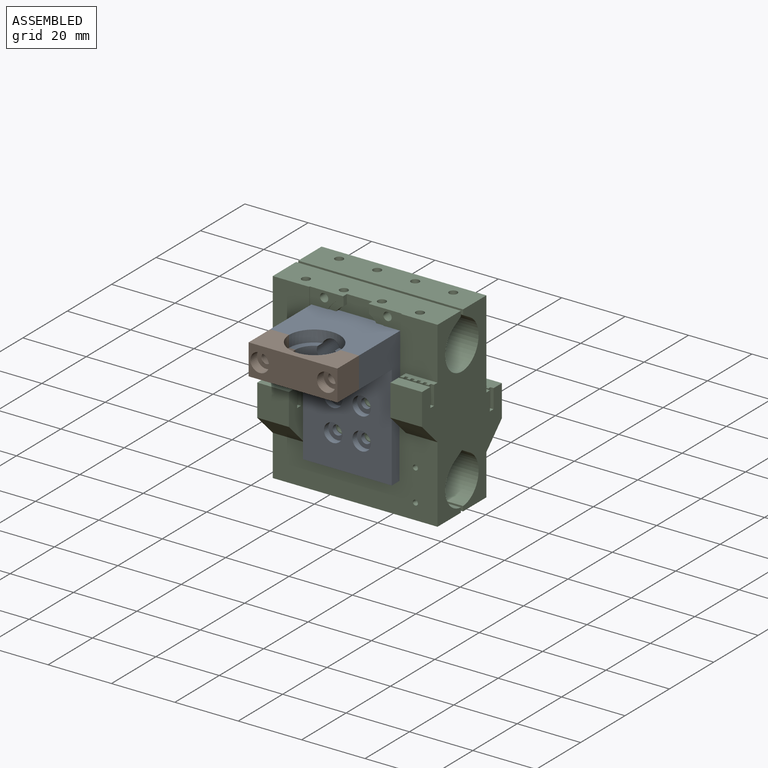
[diagram: assembled view]
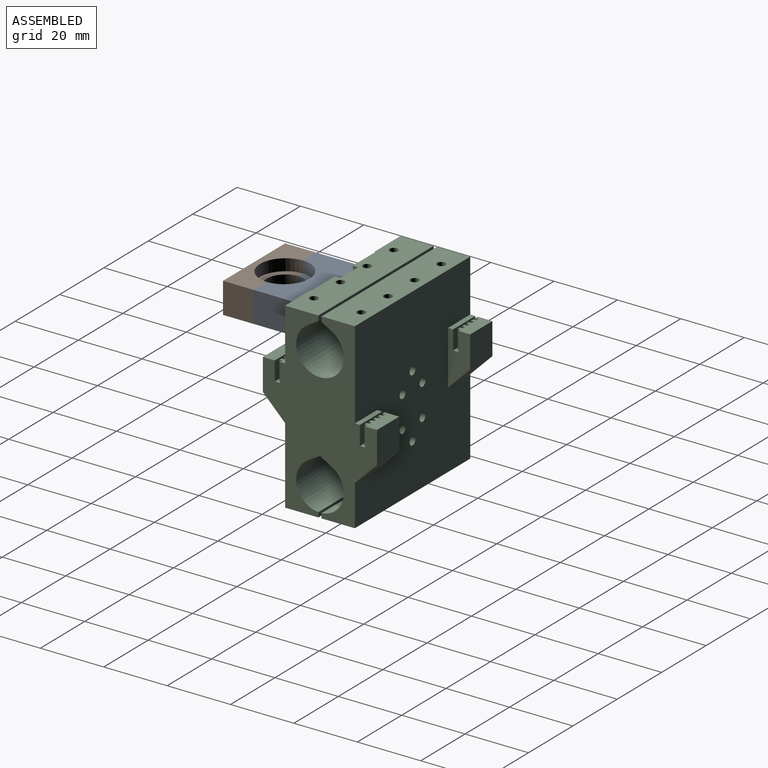
[diagram: assembled view, second angle]
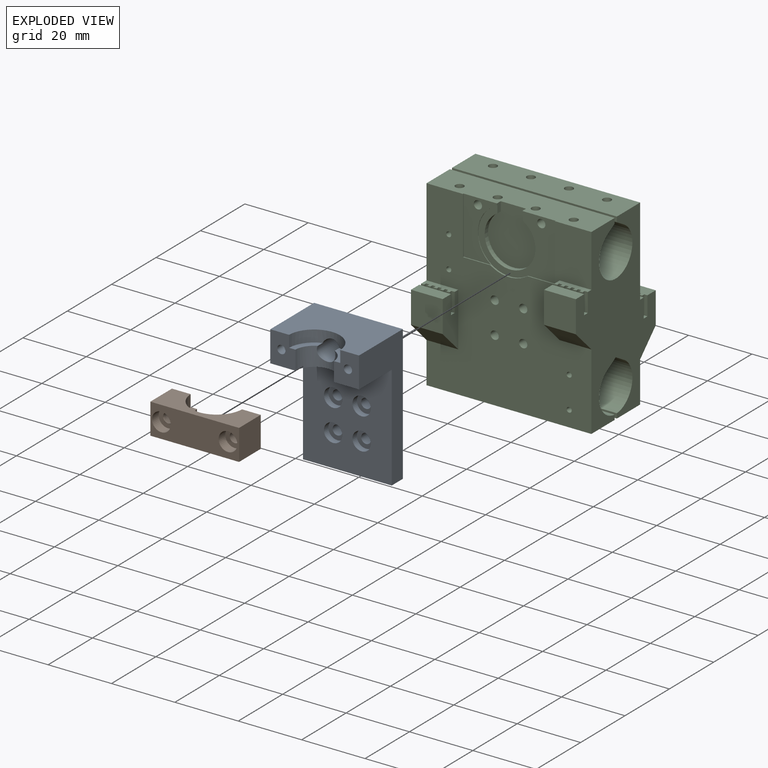
[diagram: exploded view]
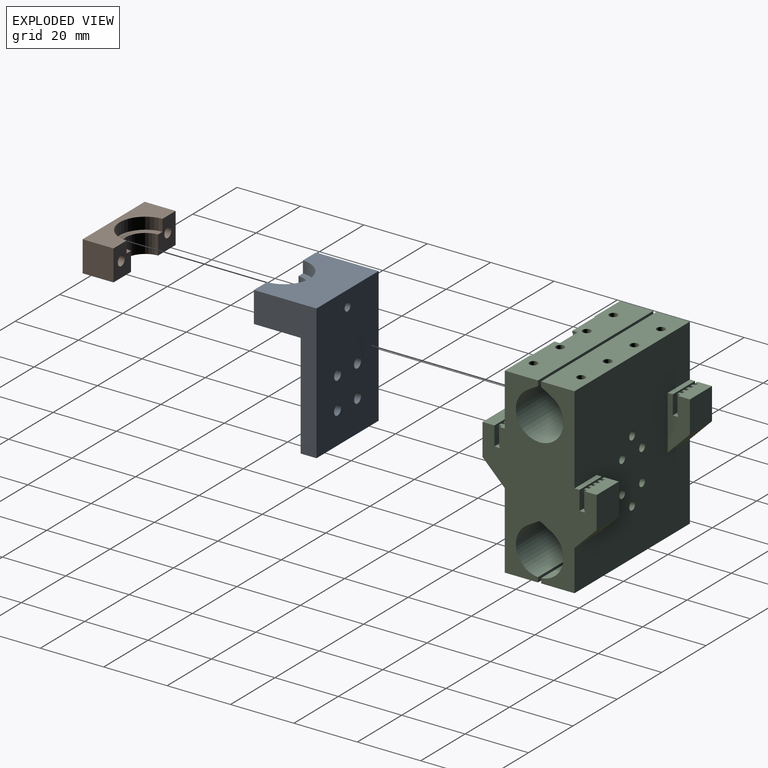
[diagram: exploded view, second angle]
ASSEMBLY  parts=3 mates=2
PART A: 32 faces, bbox 28x42.7x19.8 mm
  f0: cylinder r=6.1mm len=12.19mm, axis (0,1,0), area 91.6mm2, adj f2,f3,f10,f17,f18,f29
  f1: cylinder r=8.1mm len=16.19mm, axis (0,1,0), area 85.5mm2, adj f2,f3,f8,f17,f18,f29
  f2: plane 7.4x5.43mm, normal (0,1,0), area 16.3mm2, adj f0,f1,f18,f29
  f3: plane 7.4x5.43mm, normal (0,1,0), area 16.3mm2, adj f0,f1,f17,f29
  f4: cylinder r=1.55mm len=3.1mm, axis (0,0,-1), area 29.2mm2, adj f16,f20
  f5: cylinder r=1.55mm len=3.1mm, axis (0,0,-1), area 29.2mm2, adj f16,f26
  f6: cylinder r=1.55mm len=3.1mm, axis (0,0,-1), area 29.2mm2, adj f16,f24
  f7: cylinder r=1.55mm len=3.1mm, axis (0,0,-1), area 29.2mm2, adj f16,f22
  f8: plane 28x19.75mm, normal (0,1,0), area 454mm2, adj f1,f9,f13,f16,f17,f18
  f9: plane 42.7x19.75mm, normal (1,0,0), area 356.6mm2, adj f8,f10,f14,f15,f16,f18
  f10: plane 28x14.75mm, normal (0,-1,0), area 357.6mm2, adj f0,f9,f13,f15,f17,f18
  f11: cylinder r=1.3mm len=15.75mm, axis (0,0,-1), area 128.6mm2, adj f17,f27
  f12: cylinder r=1.3mm len=15.75mm, axis (0,0,-1), area 128.6mm2, adj f18,f28
  f13: plane 42.7x19.75mm, normal (-1,0,0), area 356.6mm2, adj f8,f10,f14,f15,f16,f17
  f14: plane 28x5mm, normal (0,-1,0), area 140mm2, adj f9,f13,f15,f16
  f15: plane 33x28mm, normal (0,0,1), area 818.3mm2, adj f9,f10,f13,f14,f19,f21,f23,f25
  f16: plane 42.7x28mm, normal (0,0,-1), area 1160.1mm2, adj f4,f5,f6,f7,f8,f9,f13,f14
  f17: plane 9.7x7.91mm, normal (0,0,1), area 64mm2, adj f0,f1,f3,f8,f10,f11,f13
  f18: plane 9.7x7.91mm, normal (0,0,1), area 64mm2, adj f0,f1,f2,f8,f9,f10,f12
  f19: cylinder r=2.9mm len=5.8mm, axis (0,0,1), area 36.4mm2, adj f15,f20
  f20: plane 5.8x5.8mm, normal (0,0,1), area 18.9mm2, adj f4,f19
  f21: cylinder r=2.9mm len=5.8mm, axis (0,0,1), area 36.4mm2, adj f15,f22
  f22: plane 5.8x5.8mm, normal (0,0,1), area 18.9mm2, adj f7,f21
  f23: cylinder r=2.9mm len=5.8mm, axis (0,0,1), area 36.4mm2, adj f15,f24
  f24: plane 5.8x5.8mm, normal (0,0,1), area 18.9mm2, adj f6,f23
  f25: cylinder r=2.9mm len=5.8mm, axis (0,0,1), area 36.4mm2, adj f15,f26
  f26: plane 5.8x5.8mm, normal (0,0,1), area 18.9mm2, adj f5,f25
  f27: plane 2.6x2.6mm, normal (0,0,1), area 5.3mm2, adj f11
  f28: plane 2.6x2.6mm, normal (0,0,1), area 5.3mm2, adj f12
  f29: cylinder r=2.9mm len=9.63mm, axis (0,0,-1), area 154.8mm2, adj f0,f1,f2,f3,f31
  f30: cylinder r=1.3mm len=5mm, axis (0,0,-1), area 40.8mm2, adj f16,f31
  f31: plane 5.8x5.8mm, normal (0,0,1), area 21.1mm2, adj f29,f30
PART B: 16 faces, bbox 28x9.7x9.8 mm
  f0: cylinder r=1.55mm len=6.75mm, axis (0,0,1), area 65.7mm2, adj f9,f15
  f1: cylinder r=1.55mm len=6.75mm, axis (0,0,1), area 65.7mm2, adj f8,f13
  f2: plane 28x9.75mm, normal (0,1,0), area 174mm2, adj f4,f5,f6,f8,f9,f10
  f3: plane 28x9.75mm, normal (0,-1,0), area 217.6mm2, adj f4,f5,f6,f7,f8,f9
  f4: plane 9.75x9.7mm, normal (1,0,0), area 94.6mm2, adj f2,f3,f6,f9
  f5: plane 9.75x9.7mm, normal (-1,0,0), area 94.6mm2, adj f2,f3,f6,f8
  f6: plane 28x9.7mm, normal (0,0,1), area 216.9mm2, adj f2,f3,f4,f5,f12,f14
  f7: cylinder r=6.1mm len=12.19mm, axis (0,1,0), area 112mm2, adj f3,f8,f9,f11
  f8: plane 9.7x7.91mm, normal (0,0,-1), area 61.7mm2, adj f1,f2,f3,f5,f7,f10,f11
  f9: plane 9.7x7.91mm, normal (0,0,-1), area 61.7mm2, adj f0,f2,f3,f4,f7,f10,f11
  f10: cylinder r=8.1mm len=16.19mm, axis (0,1,0), area 92.3mm2, adj f2,f8,f9,f11
  f11: plane 16.19x7.85mm, normal (0,1,0), area 43.6mm2, adj f7,f8,f9,f10
  f12: cylinder r=2.95mm len=5.9mm, axis (0,0,1), area 55.6mm2, adj f6,f13
  f13: plane 5.9x5.9mm, normal (0,0,1), area 19.8mm2, adj f1,f12
  f14: cylinder r=2.95mm len=5.9mm, axis (0,0,1), area 55.6mm2, adj f6,f15
  f15: plane 5.9x5.9mm, normal (0,0,1), area 19.8mm2, adj f0,f14
PART C: 179 faces, bbox 52x36x57.6 mm
  f0: plane 52x10.5mm, normal (0,0,1), area 502.5mm2, adj f1,f4,f5,f11,f12,f19,f143,f145
  f1: plane 18x10.5mm, normal (0,-1,0), area 105.4mm2, adj f0,f2,f3,f145,f149,f150,f157,f161
  f2: plane 1x0.58mm, normal (-0.5,0,-0.87), area 0.2mm2, adj f1,f150,f154,f157
  f3: plane 8.62x0.3mm, normal (0,0,1), area 2.6mm2, adj f1,f5,f145,f148
  f4: plane 18x10.5mm, normal (0,-1,0), area 105.4mm2, adj f0,f143,f144,f151,f152,f153,f155,f159
  f5: plane 57.6x52mm, normal (0,-1,0), area 2089.3mm2, adj f0,f3,f6,f7,f11,f12,f14,f27
  f6: plane 10x2.5mm, normal (0,0,1), area 20.5mm2, adj f5,f11,f36,f111,f112,f113,f114,f115
  f7: plane 10x2.5mm, normal (0,0,1), area 20.5mm2, adj f5,f12,f39,f90,f91,f92,f93,f94
  f8: plane 10x4.65mm, normal (0,0,1), area 42mm2, adj f12,f41,f43,f69,f70,f71,f72,f73
  f9: plane 10x4.65mm, normal (0,0,1), area 42mm2, adj f11,f45,f46,f48,f49,f50,f51,f52
  f10: plane 57.6x52mm, normal (0,1,0), area 2623.3mm2, adj f11,f12,f13,f15,f41,f42,f44,f45
  f11: plane 57.6x36mm, normal (-1,0,0), area 1084.7mm2, adj f0,f5,f6,f9,f10,f13,f14,f15
  f12: plane 57.6x36mm, normal (1,0,0), area 1073.9mm2, adj f0,f5,f7,f8,f10,f13,f14,f15
  f13: plane 52x10.5mm, normal (0,0,-1), area 546mm2, adj f10,f11,f12,f25
  f14: plane 52x10.5mm, normal (0,0,-1), area 546mm2, adj f5,f11,f12,f26
  f15: plane 52x10.5mm, normal (0,0,1), area 524.8mm2, adj f10,f11,f12,f20,f163,f165,f167,f169
  f16: plane 52x3.25mm, normal (0,-0.5,-0.87), area 195.1mm2, adj f11,f12,f17,f20
  f17: cylinder r=7.5mm len=52mm, axis (-1,0,0), area 2042mm2, adj f11,f12,f16,f18
  f18: plane 52x3.25mm, normal (0,0.5,-0.87), area 195.1mm2, adj f11,f12,f17,f19
  f19: plane 52x1.63mm, normal (0,1,0), area 84.7mm2, adj f0,f11,f12,f18
  f20: plane 52x1.63mm, normal (0,-1,0), area 84.7mm2, adj f11,f12,f15,f16
  f21: cylinder r=7.5mm len=52mm, axis (-1,0,0), area 995mm2, adj f11,f12,f22,f26
  f22: plane 52x3.75mm, normal (0,0.5,-0.87), area 225.2mm2, adj f11,f12,f21,f23
  f23: plane 52x3.75mm, normal (0,-0.5,-0.87), area 225.2mm2, adj f11,f12,f22,f24
  f24: cylinder r=7.5mm len=52mm, axis (-1,0,0), area 995mm2, adj f11,f12,f23,f25
  f25: plane 52x1.52mm, normal (0,-1,0), area 78.9mm2, adj f11,f12,f13,f24
  f26: plane 52x1.52mm, normal (0,1,0), area 78.9mm2, adj f11,f12,f14,f21
  f27: cylinder r=0.8mm len=7mm, axis (0,-1,0), area 35.2mm2, adj f5,f28
  f28: plane 1.6x1.6mm, normal (0,-1,0), area 2mm2, adj f27
  f29: cylinder r=0.8mm len=3.5mm, axis (0,-1,0), area 17.6mm2, adj f5,f30
  f30: plane 1.6x1.6mm, normal (0,-1,0), area 2mm2, adj f29
  f31: cylinder r=0.8mm len=3.5mm, axis (0,-1,0), area 17.6mm2, adj f5,f32
  f32: plane 1.6x1.6mm, normal (0,-1,0), area 2mm2, adj f31
  f33: cylinder r=0.8mm len=3.5mm, axis (0,-1,0), area 17.6mm2, adj f5,f34
  f34: plane 1.6x1.6mm, normal (0,-1,0), area 2mm2, adj f33
  f35: plane 10x3.75mm, normal (0,0,1), area 37.5mm2, adj f11,f36,f37,f110
  f36: plane 17x7mm, normal (1,0,0), area 84.6mm2, adj f5,f6,f35,f37,f110,f111,f130,f132
  f37: plane 10x10mm, normal (0,-1,0), area 100mm2, adj f11,f35,f36,f132
  f38: plane 10x3.75mm, normal (0,0,1), area 37.5mm2, adj f12,f39,f40,f89
  f39: plane 17x7mm, normal (-1,0,0), area 90mm2, adj f5,f7,f38,f40,f89,f108,f109,f131
  f40: plane 10x10mm, normal (0,-1,0), area 100mm2, adj f12,f38,f39,f131
  f41: plane 17x7mm, normal (-1,0,0), area 90mm2, adj f8,f10,f42,f43,f68,f87,f88,f133
  f42: plane 10x1.6mm, normal (0,0,1), area 16mm2, adj f10,f12,f41,f68
  f43: plane 10x10mm, normal (0,1,0), area 100mm2, adj f8,f12,f41,f133
  f44: plane 10x1.6mm, normal (0,0,1), area 16mm2, adj f10,f11,f45,f47
  f45: plane 17x7mm, normal (1,0,0), area 84.6mm2, adj f9,f10,f44,f46,f47,f48,f67,f134
  f46: plane 10x10mm, normal (0,1,0), area 100mm2, adj f9,f11,f45,f134
  f47: plane 10x6mm, normal (0,1,0), area 60mm2, adj f11,f44,f45,f67
  f48: plane 6x1mm, normal (0,-1,0), area 6mm2, adj f9,f45,f49,f67
  f49: plane 6x0.9mm, normal (1,0,0), area 5.4mm2, adj f9,f48,f50,f67
  f50: plane 6x1mm, normal (0,-1,0), area 6mm2, adj f9,f49,f51,f67
  f51: plane 6x0.9mm, normal (-1,0,0), area 5.4mm2, adj f9,f50,f52,f67
  f52: plane 6x1mm, normal (0,-1,0), area 6mm2, adj f9,f51,f53,f67
  f53: plane 6x0.9mm, normal (1,0,0), area 5.4mm2, adj f9,f52,f54,f67
  f54: plane 6x1mm, normal (0,-1,0), area 6mm2, adj f9,f53,f55,f67
  f55: plane 6x0.9mm, normal (-1,0,0), area 5.4mm2, adj f9,f54,f56,f67
  f56: plane 6x1mm, normal (0,-1,0), area 6mm2, adj f9,f55,f57,f67
  f57: plane 6x0.9mm, normal (1,0,0), area 5.4mm2, adj f9,f56,f58,f67
  f58: plane 6x1mm, normal (0,-1,0), area 6mm2, adj f9,f57,f59,f67
  f59: plane 6x0.9mm, normal (-1,0,0), area 5.4mm2, adj f9,f58,f60,f67
  f60: plane 6x1mm, normal (0,-1,0), area 6mm2, adj f9,f59,f61,f67
  f61: plane 6x0.9mm, normal (1,0,0), area 5.4mm2, adj f9,f60,f62,f67
  f62: plane 6x1mm, normal (0,-1,0), area 6mm2, adj f9,f61,f63,f67
  f63: plane 6x0.9mm, normal (-1,0,0), area 5.4mm2, adj f9,f62,f64,f67
  f64: plane 6x1mm, normal (0,-1,0), area 6mm2, adj f9,f63,f65,f67
  f65: plane 6x0.9mm, normal (1,0,0), area 5.4mm2, adj f9,f64,f66,f67
  f66: plane 6x1mm, normal (0,-1,0), area 6mm2, adj f9,f11,f65,f67
  f67: plane 10x1.65mm, normal (0,0,1), area 12mm2, adj f11,f45,f47,f48,f49,f50,f51,f52
  f68: plane 10x6mm, normal (0,1,0), area 60mm2, adj f12,f41,f42,f88
  f69: plane 6x1mm, normal (0,-1,0), area 6mm2, adj f8,f12,f70,f88
  f70: plane 6x0.9mm, normal (1,0,0), area 5.4mm2, adj f8,f69,f71,f88
  f71: plane 6x1mm, normal (0,-1,0), area 6mm2, adj f8,f70,f72,f88
  f72: plane 6x0.9mm, normal (-1,0,0), area 5.4mm2, adj f8,f71,f73,f88
  f73: plane 6x1mm, normal (0,-1,0), area 6mm2, adj f8,f72,f74,f88
  f74: plane 6x0.9mm, normal (1,0,0), area 5.4mm2, adj f8,f73,f75,f88
  f75: plane 6x1mm, normal (0,-1,0), area 6mm2, adj f8,f74,f76,f88
  f76: plane 6x0.9mm, normal (-1,0,0), area 5.4mm2, adj f8,f75,f77,f88
  f77: plane 6x1mm, normal (0,-1,0), area 6mm2, adj f8,f76,f78,f88
  f78: plane 6x0.9mm, normal (1,0,0), area 5.4mm2, adj f8,f77,f79,f88
  f79: plane 6x1mm, normal (0,-1,0), area 6mm2, adj f8,f78,f80,f88
  f80: plane 6x0.9mm, normal (-1,0,0), area 5.4mm2, adj f8,f79,f81,f88
  f81: plane 6x1mm, normal (0,-1,0), area 6mm2, adj f8,f80,f82,f88
  f82: plane 6x0.9mm, normal (1,0,0), area 5.4mm2, adj f8,f81,f83,f88
  f83: plane 6x1mm, normal (0,-1,0), area 6mm2, adj f8,f82,f84,f88
  f84: plane 6x0.9mm, normal (-1,0,0), area 5.4mm2, adj f8,f83,f85,f88
  f85: plane 6x1mm, normal (0,-1,0), area 6mm2, adj f8,f84,f86,f88
  f86: plane 6x0.9mm, normal (1,0,0), area 5.4mm2, adj f8,f85,f87,f88
  f87: plane 6x1mm, normal (0,-1,0), area 6mm2, adj f8,f41,f86,f88
  f88: plane 10x1.65mm, normal (0,0,1), area 12mm2, adj f12,f41,f68,f69,f70,f71,f72,f73
  f89: plane 10x6mm, normal (0,1,0), area 60mm2, adj f12,f38,f39,f109
  f90: plane 6x1mm, normal (0,-1,0), area 6mm2, adj f7,f12,f91,f109
  f91: plane 6x0.9mm, normal (1,0,0), area 5.4mm2, adj f7,f90,f92,f109
  f92: plane 6x1mm, normal (0,-1,0), area 6mm2, adj f7,f91,f93,f109
  f93: plane 6x0.9mm, normal (-1,0,0), area 5.4mm2, adj f7,f92,f94,f109
  f94: plane 6x1mm, normal (0,-1,0), area 6mm2, adj f7,f93,f95,f109
  f95: plane 6x0.9mm, normal (1,0,0), area 5.4mm2, adj f7,f94,f96,f109
  f96: plane 6x1mm, normal (0,-1,0), area 6mm2, adj f7,f95,f97,f109
  f97: plane 6x0.9mm, normal (-1,0,0), area 5.4mm2, adj f7,f96,f98,f109
  f98: plane 6x1mm, normal (0,-1,0), area 6mm2, adj f7,f97,f99,f109
  f99: plane 6x0.9mm, normal (1,0,0), area 5.4mm2, adj f7,f98,f100,f109
  f100: plane 6x1mm, normal (0,-1,0), area 6mm2, adj f7,f99,f101,f109
  f101: plane 6x0.9mm, normal (-1,0,0), area 5.4mm2, adj f7,f100,f102,f109
  f102: plane 6x1mm, normal (0,-1,0), area 6mm2, adj f7,f101,f103,f109
  f103: plane 6x0.9mm, normal (1,0,0), area 5.4mm2, adj f7,f102,f104,f109
  f104: plane 6x1mm, normal (0,-1,0), area 6mm2, adj f7,f103,f105,f109
  f105: plane 6x0.9mm, normal (-1,0,0), area 5.4mm2, adj f7,f104,f106,f109
  f106: plane 6x1mm, normal (0,-1,0), area 6mm2, adj f7,f105,f107,f109
  f107: plane 6x0.9mm, normal (1,0,0), area 5.4mm2, adj f7,f106,f108,f109
  f108: plane 6x1mm, normal (0,-1,0), area 6mm2, adj f7,f39,f107,f109
  f109: plane 10x1.65mm, normal (0,0,1), area 12mm2, adj f12,f39,f89,f90,f91,f92,f93,f94
  f110: plane 10x6mm, normal (0,1,0), area 60mm2, adj f11,f35,f36,f130
  f111: plane 6x1mm, normal (0,-1,0), area 6mm2, adj f6,f36,f112,f130
  f112: plane 6x0.9mm, normal (1,0,0), area 5.4mm2, adj f6,f111,f113,f130
  f113: plane 6x1mm, normal (0,-1,0), area 6mm2, adj f6,f112,f114,f130
  f114: plane 6x0.9mm, normal (-1,0,0), area 5.4mm2, adj f6,f113,f115,f130
  f115: plane 6x1mm, normal (0,-1,0), area 6mm2, adj f6,f114,f116,f130
  f116: plane 6x0.9mm, normal (1,0,0), area 5.4mm2, adj f6,f115,f117,f130
  f117: plane 6x1mm, normal (0,-1,0), area 6mm2, adj f6,f116,f118,f130
  f118: plane 6x0.9mm, normal (-1,0,0), area 5.4mm2, adj f6,f117,f119,f130
  f119: plane 6x1mm, normal (0,-1,0), area 6mm2, adj f6,f118,f120,f130
  f120: plane 6x0.9mm, normal (1,0,0), area 5.4mm2, adj f6,f119,f121,f130
  f121: plane 6x1mm, normal (0,-1,0), area 6mm2, adj f6,f120,f122,f130
  f122: plane 6x0.9mm, normal (-1,0,0), area 5.4mm2, adj f6,f121,f123,f130
  f123: plane 6x1mm, normal (0,-1,0), area 6mm2, adj f6,f122,f124,f130
  f124: plane 6x0.9mm, normal (1,0,0), area 5.4mm2, adj f6,f123,f125,f130
  f125: plane 6x1mm, normal (0,-1,0), area 6mm2, adj f6,f124,f126,f130
  f126: plane 6x0.9mm, normal (-1,0,0), area 5.4mm2, adj f6,f125,f127,f130
  f127: plane 6x1mm, normal (0,-1,0), area 6mm2, adj f6,f126,f128,f130
  f128: plane 6x0.9mm, normal (1,0,0), area 5.4mm2, adj f6,f127,f129,f130
  f129: plane 6x1mm, normal (0,-1,0), area 6mm2, adj f6,f11,f128,f130
  f130: plane 10x1.65mm, normal (0,0,1), area 12mm2, adj f11,f36,f110,f111,f112,f113,f114,f115
  f131: plane 10x7mm, normal (0,-0.71,-0.71), area 99mm2, adj f5,f12,f39,f40
  f132: plane 10x7mm, normal (0,-0.71,-0.71), area 99mm2, adj f5,f11,f36,f37
  f133: plane 10x7mm, normal (0,0.71,-0.71), area 99mm2, adj f10,f12,f41,f43
  f134: plane 10x7mm, normal (0,0.71,-0.71), area 99mm2, adj f10,f11,f45,f46
  f135: cylinder r=1.3mm len=22mm, axis (0,1,0), area 179.7mm2, adj f5,f10
  f136: cylinder r=1.3mm len=22mm, axis (0,1,0), area 179.7mm2, adj f5,f10
  f137: cylinder r=1.3mm len=22mm, axis (0,1,0), area 179.7mm2, adj f5,f10
  f138: cylinder r=1.3mm len=22mm, axis (0,1,0), area 179.7mm2, adj f5,f10
  f139: cylinder r=1.3mm len=5mm, axis (0,1,0), area 40.8mm2, adj f10,f140
  f140: plane 2.6x2.6mm, normal (0,1,0), area 5.3mm2, adj f139
  f141: cylinder r=1.3mm len=5mm, axis (0,1,0), area 40.8mm2, adj f10,f142
  f142: plane 2.6x2.6mm, normal (0,1,0), area 5.3mm2, adj f141
  f143: plane 18x0.3mm, normal (1,0,0), area 5.4mm2, adj f0,f4,f5,f144
  f144: plane 8.62x0.3mm, normal (0,0,1), area 2.6mm2, adj f4,f5,f143,f146
  f145: plane 18x0.3mm, normal (-1,0,0), area 5.4mm2, adj f0,f1,f3,f5
  f146: plane 0.88x0.51mm, normal (0.5,0,0.87), area 0.5mm2, adj f5,f144,f147,f153,f154
  f147: cylinder r=10mm len=10mm, axis (0,-1,0), area 5.2mm2, adj f5,f146,f148,f154
  f148: plane 0.88x0.51mm, normal (-0.5,0,0.87), area 0.5mm2, adj f3,f5,f147,f149,f154
  f149: plane 0.2x0.09mm, normal (0,0,-1), area 0mm2, adj f1,f148,f150,f154
  f150: cylinder r=10mm len=16.81mm, axis (0,-1,0), area 4mm2, adj f1,f2,f149,f154
  f151: plane 1x0.58mm, normal (0.5,0,-0.87), area 0.2mm2, adj f4,f152,f154,f155
  f152: cylinder r=10mm len=16.81mm, axis (0,-1,0), area 4mm2, adj f4,f151,f153,f154
  f153: plane 0.2x0.09mm, normal (0,0,-1), area 0mm2, adj f4,f146,f152,f154
  f154: plane 20x19.24mm, normal (0,-1,0), area 96.6mm2, adj f2,f146,f147,f148,f149,f150,f151,f152
  f155: plane 2.92x1.7mm, normal (1,0,0), area 4.5mm2, adj f0,f4,f151,f154,f156,f158
  f156: cylinder r=8mm len=16mm, axis (0,-1,0), area 62.8mm2, adj f154,f155,f157,f158
  f157: plane 2.92x1.7mm, normal (-1,0,0), area 4.5mm2, adj f0,f1,f2,f154,f156,f158
  f158: plane 17.85x16mm, normal (0,-1,0), area 218.6mm2, adj f0,f155,f156,f157
  f159: cylinder r=1.3mm len=4.7mm, axis (0,-1,0), area 38.4mm2, adj f4,f160
  f160: plane 2.6x2.6mm, normal (0,-1,0), area 5.3mm2, adj f159
  f161: cylinder r=1.3mm len=4.7mm, axis (0,-1,0), area 38.4mm2, adj f1,f162
  f162: plane 2.6x2.6mm, normal (0,-1,0), area 5.3mm2, adj f161
  f163: cylinder r=1.3mm len=4mm, axis (0,0,1), area 32.7mm2, adj f15,f164
  f164: plane 2.6x2.6mm, normal (0,0,1), area 5.3mm2, adj f163
  f165: cylinder r=1.3mm len=4mm, axis (0,0,1), area 32.7mm2, adj f15,f166
  f166: plane 2.6x2.6mm, normal (0,0,1), area 5.3mm2, adj f165
  f167: cylinder r=1.3mm len=4mm, axis (0,0,1), area 32.7mm2, adj f15,f168
  f168: plane 2.6x2.6mm, normal (0,0,1), area 5.3mm2, adj f167
  f169: cylinder r=1.3mm len=4mm, axis (0,0,1), area 32.7mm2, adj f15,f170
  f170: plane 2.6x2.6mm, normal (0,0,1), area 5.3mm2, adj f169
  f171: cylinder r=1.3mm len=4mm, axis (0,0,1), area 32.7mm2, adj f0,f172
  f172: plane 2.6x2.6mm, normal (0,0,1), area 5.3mm2, adj f171
  f173: cylinder r=1.3mm len=4mm, axis (0,0,1), area 32.7mm2, adj f0,f174
  f174: plane 2.6x2.6mm, normal (0,0,1), area 5.3mm2, adj f173
  f175: cylinder r=1.3mm len=4mm, axis (0,0,1), area 32.7mm2, adj f0,f176
  f176: plane 2.6x2.6mm, normal (0,0,1), area 5.3mm2, adj f175
  f177: cylinder r=1.3mm len=4mm, axis (0,0,1), area 32.7mm2, adj f0,f178
  f178: plane 2.6x2.6mm, normal (0,0,1), area 5.3mm2, adj f177
PLACE A rot(axis=(1,0,0),90deg) t=(29.85,5.8,37.98)mm
PLACE B rot(axis=(1,0,0),90deg) t=(29.85,6.3,37.98)mm
PLACE C t=(3.85,4.3,1.18)mm
MATE fastened A.f4 <-> C.f137  axis (0,1,0) through (25.35,4.3,31.18)mm
MATE fastened B.f1 <-> A.f11  axis (0,1,0) through (19.35,-13.95,48.93)mm
